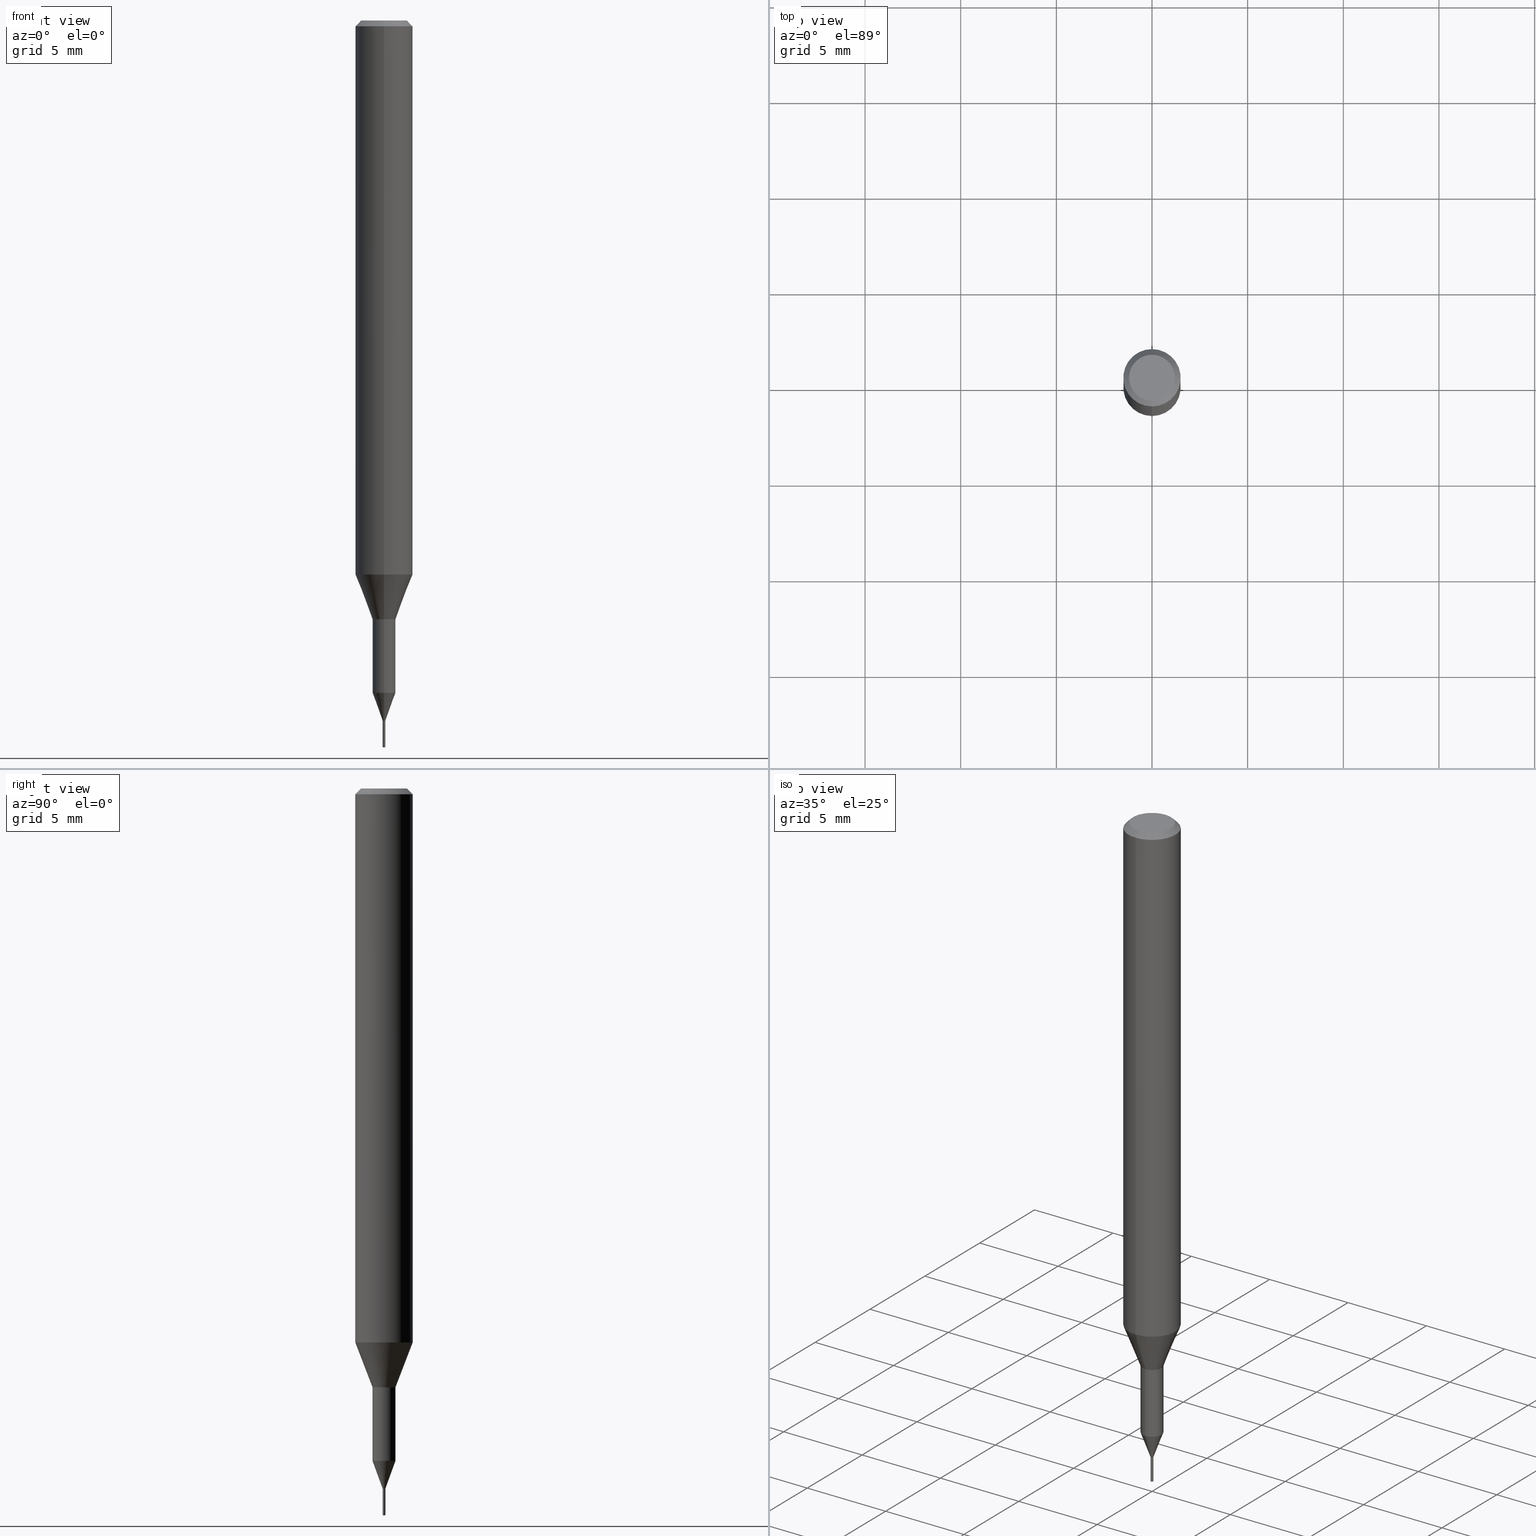
[diagram: canonical four-view strip — front | top / right | iso, engineering-drawing reading convention]
A machine part, canonical four-view strip (front | top / right | iso — engineering-drawing reading convention). The complete STEP part file that produces these views, byte-faithful:
ISO-10303-21;
HEADER;
FILE_DESCRIPTION(('no description'),'unknown implementation level');
FILE_NAME('C-UMD2014-014-Huellk.stp','  ',('CIMSOURCE GmbH'),('CADClick - KiM GmbH - www.kimweb.de'),'unknown preprocess','ACIS','unknown authorization');
FILE_SCHEMA(('automotive_design'));
ENDSEC;
DATA;
#1=MECHANICAL_DESIGN_GEOMETRIC_PRESENTATION_REPRESENTATION(' ',(#14,#15,#16,#17,#18,#19,#20,#21,#22,#23,#24,#25,#26,#27,#28,#29,#30,#31,#32,#33,#34,#35,#36,#37,#38,#39,#40,#41,#42,#43,#44,#45,#46,#47,#48,#49,#50,#51,#52,#53,#54,#55,#56,#57,#58,#59,#60,#61,#62,#63,#64,#65,#66,#67,#68,#69,#70,#71,#72,#73,#74,#75,#76,#77,#78,#79,#80,#81,#82,#83,#84,#85,#86,#87,#88,#89,#90,#91,#92),#10);
#2=PRODUCT_DEFINITION_CONTEXT('',#93,'design');
#3=APPLICATION_PROTOCOL_DEFINITION('INTERNATIONAL STANDARD','automotive_design',1994,#93);
#4=PRODUCT_CATEGORY_RELATIONSHIP('NONE','NONE',#94,#95);
#5=SHAPE_DEFINITION_REPRESENTATION(#96,#97);
#6=PRODUCT_DEFINITION_CONTEXT('',#98,'design');
#7=APPLICATION_PROTOCOL_DEFINITION('INTERNATIONAL STANDARD','automotive_design',1994,#98);
#8=PRODUCT_CATEGORY_RELATIONSHIP('NONE','NONE',#99,#100);
#9=SHAPE_DEFINITION_REPRESENTATION(#101,#102);
#10= (GEOMETRIC_REPRESENTATION_CONTEXT(3)GLOBAL_UNCERTAINTY_ASSIGNED_CONTEXT((#105))GLOBAL_UNIT_ASSIGNED_CONTEXT((#107,#108,#109))REPRESENTATION_CONTEXT('NONE','WORKSPACE'));
#14=STYLED_ITEM('',(#111),#112);
#15=STYLED_ITEM('',(#113),#114);
#16=STYLED_ITEM('',(#115),#116);
#17=STYLED_ITEM('',(#117),#118);
#18=STYLED_ITEM('',(#119),#120);
#19=STYLED_ITEM('',(#121),#122);
#20=STYLED_ITEM('',(#123),#124);
#21=STYLED_ITEM('',(#125),#126);
#22=STYLED_ITEM('',(#127),#128);
#23=STYLED_ITEM('',(#129),#130);
#24=STYLED_ITEM('',(#131),#132);
#25=STYLED_ITEM('',(#133),#134);
#26=STYLED_ITEM('',(#135),#136);
#27=STYLED_ITEM('',(#137),#138);
#28=STYLED_ITEM('',(#139),#140);
#29=STYLED_ITEM('',(#141),#142);
#30=STYLED_ITEM('',(#143),#144);
#31=STYLED_ITEM('',(#145),#146);
#32=STYLED_ITEM('',(#147),#148);
#33=STYLED_ITEM('',(#149),#150);
#34=STYLED_ITEM('',(#151),#152);
#35=STYLED_ITEM('',(#153),#154);
#36=STYLED_ITEM('',(#155),#156);
#37=STYLED_ITEM('',(#157),#158);
#38=STYLED_ITEM('',(#159),#160);
#39=STYLED_ITEM('',(#161),#162);
#40=STYLED_ITEM('',(#163),#164);
#41=STYLED_ITEM('',(#165),#166);
#42=STYLED_ITEM('',(#167),#168);
#43=STYLED_ITEM('',(#169),#170);
#44=STYLED_ITEM('',(#171),#172);
#45=STYLED_ITEM('',(#173),#174);
#46=STYLED_ITEM('',(#175),#176);
#47=STYLED_ITEM('',(#177),#178);
#48=STYLED_ITEM('',(#179),#180);
#49=STYLED_ITEM('',(#181),#182);
#50=STYLED_ITEM('',(#183),#184);
#51=STYLED_ITEM('',(#185),#186);
#52=STYLED_ITEM('',(#187),#188);
#53=STYLED_ITEM('',(#189),#190);
#54=STYLED_ITEM('',(#191),#192);
#55=STYLED_ITEM('',(#193),#194);
#56=STYLED_ITEM('',(#195),#196);
#57=STYLED_ITEM('',(#197),#198);
#58=STYLED_ITEM('',(#199),#200);
#59=STYLED_ITEM('',(#201),#202);
#60=STYLED_ITEM('',(#203),#204);
#61=STYLED_ITEM('',(#205),#206);
#62=STYLED_ITEM('',(#207),#208);
#63=STYLED_ITEM('',(#209),#210);
#64=STYLED_ITEM('',(#211),#212);
#65=STYLED_ITEM('',(#213),#214);
#66=STYLED_ITEM('',(#215),#216);
#67=STYLED_ITEM('',(#217),#218);
#68=STYLED_ITEM('',(#219),#220);
#69=STYLED_ITEM('',(#221),#222);
#70=STYLED_ITEM('',(#223),#224);
#71=STYLED_ITEM('',(#225),#226);
#72=STYLED_ITEM('',(#227),#228);
#73=STYLED_ITEM('',(#229),#230);
#74=STYLED_ITEM('',(#231),#232);
#75=STYLED_ITEM('',(#233),#234);
#76=STYLED_ITEM('',(#235),#236);
#77=STYLED_ITEM('',(#237),#238);
#78=STYLED_ITEM('',(#239),#240);
#79=STYLED_ITEM('',(#241),#242);
#80=STYLED_ITEM('',(#243),#244);
#81=STYLED_ITEM('',(#245),#246);
#82=STYLED_ITEM('',(#247),#248);
#83=STYLED_ITEM('',(#249),#250);
#84=STYLED_ITEM('',(#251),#252);
#85=STYLED_ITEM('',(#253),#254);
#86=STYLED_ITEM('',(#255),#256);
#87=STYLED_ITEM('',(#257),#258);
#88=STYLED_ITEM('',(#259),#260);
#89=STYLED_ITEM('',(#261),#262);
#90=STYLED_ITEM('',(#263),#264);
#91=STYLED_ITEM('',(#265),#266);
#92=STYLED_ITEM('',(#267),#268);
#93=APPLICATION_CONTEXT(' ');
#94=PRODUCT_CATEGORY('part','NONE');
#95=PRODUCT_RELATED_PRODUCT_CATEGORY('detail',' ',(#269));
#96=PRODUCT_DEFINITION_SHAPE('NONE','NONE',#270);
#97=ADVANCED_BREP_SHAPE_REPRESENTATION('1',(#180,#271),#10);
#98=APPLICATION_CONTEXT(' ');
#99=PRODUCT_CATEGORY('part','NONE');
#100=PRODUCT_RELATED_PRODUCT_CATEGORY('detail',' ',(#272));
#101=PRODUCT_DEFINITION_SHAPE('NONE','NONE',#273);
#102=ADVANCED_BREP_SHAPE_REPRESENTATION('2',(#156,#274),#10);
#105=UNCERTAINTY_MEASURE_WITH_UNIT(LENGTH_MEASURE(1.0E-006),#107,'','');
#107= (CONVERSION_BASED_UNIT('MILLIMETRE',#277)LENGTH_UNIT()NAMED_UNIT(#280));
#108= (NAMED_UNIT(#282)PLANE_ANGLE_UNIT()SI_UNIT($,.RADIAN.));
#109= (NAMED_UNIT(#282)SOLID_ANGLE_UNIT()SI_UNIT($,.STERADIAN.));
#111=PRESENTATION_STYLE_ASSIGNMENT((#288));
#112=ADVANCED_FACE('',(#289),#290,.T.);
#113=PRESENTATION_STYLE_ASSIGNMENT((#291));
#114=VERTEX_POINT('',#292);
#115=PRESENTATION_STYLE_ASSIGNMENT((#293));
#116=ADVANCED_FACE('',(#294),#295,.T.);
#117=PRESENTATION_STYLE_ASSIGNMENT((#296));
#118=EDGE_CURVE('',#246,#250,#297,.T.);
#119=PRESENTATION_STYLE_ASSIGNMENT((#298));
#120=VERTEX_POINT('',#299);
#121=PRESENTATION_STYLE_ASSIGNMENT((#300));
#122=EDGE_CURVE('',#120,#140,#301,.T.);
#123=PRESENTATION_STYLE_ASSIGNMENT((#302));
#124=ADVANCED_FACE('',(#303),#304,.T.);
#125=PRESENTATION_STYLE_ASSIGNMENT((#305));
#126=ADVANCED_FACE('',(#306),#307,.T.);
#127=PRESENTATION_STYLE_ASSIGNMENT((#308));
#128=VERTEX_POINT('',#309);
#129=PRESENTATION_STYLE_ASSIGNMENT((#310));
#130=ADVANCED_FACE('',(#311),#312,.T.);
#131=PRESENTATION_STYLE_ASSIGNMENT((#313));
#132=EDGE_CURVE('',#216,#212,#314,.T.);
#133=PRESENTATION_STYLE_ASSIGNMENT((#315));
#134=VERTEX_POINT('',#316);
#135=PRESENTATION_STYLE_ASSIGNMENT((#317));
#136=EDGE_CURVE('',#164,#162,#318,.T.);
#137=PRESENTATION_STYLE_ASSIGNMENT((#319));
#138=ADVANCED_FACE('',(#320),#321,.T.);
#139=PRESENTATION_STYLE_ASSIGNMENT((#322));
#140=VERTEX_POINT('',#323);
#141=PRESENTATION_STYLE_ASSIGNMENT((#324));
#142=VERTEX_POINT('',#325);
#143=PRESENTATION_STYLE_ASSIGNMENT((#326));
#144=VERTEX_POINT('',#327);
#145=PRESENTATION_STYLE_ASSIGNMENT((#328));
#146=EDGE_CURVE('',#144,#134,#329,.T.);
#147=PRESENTATION_STYLE_ASSIGNMENT((#330));
#148=VERTEX_POINT('',#331);
#149=PRESENTATION_STYLE_ASSIGNMENT((#332));
#150=ADVANCED_FACE('',(#333),#334,.T.);
#151=PRESENTATION_STYLE_ASSIGNMENT((#335));
#152=EDGE_CURVE('',#256,#148,#336,.T.);
#153=PRESENTATION_STYLE_ASSIGNMENT((#337));
#154=VERTEX_POINT('',#338);
#155=PRESENTATION_STYLE_ASSIGNMENT((#339));
#156=MANIFOLD_SOLID_BREP('2',#340);
#157=PRESENTATION_STYLE_ASSIGNMENT((#341));
#158=ADVANCED_FACE('',(#342),#343,.T.);
#159=PRESENTATION_STYLE_ASSIGNMENT((#344));
#160=EDGE_CURVE('',#140,#128,#345,.T.);
#161=PRESENTATION_STYLE_ASSIGNMENT((#346));
#162=VERTEX_POINT('',#347);
#163=PRESENTATION_STYLE_ASSIGNMENT((#348));
#164=VERTEX_POINT('',#349);
#165=PRESENTATION_STYLE_ASSIGNMENT((#350));
#166=ADVANCED_FACE('',(#351),#352,.T.);
#167=PRESENTATION_STYLE_ASSIGNMENT((#353));
#168=VERTEX_POINT('',#354);
#169=PRESENTATION_STYLE_ASSIGNMENT((#355));
#170=EDGE_CURVE('',#148,#216,#356,.T.);
#171=PRESENTATION_STYLE_ASSIGNMENT((#357));
#172=EDGE_CURVE('',#114,#154,#358,.T.);
#173=PRESENTATION_STYLE_ASSIGNMENT((#359));
#174=EDGE_CURVE('',#154,#204,#360,.T.);
#175=PRESENTATION_STYLE_ASSIGNMENT((#361));
#176=ADVANCED_FACE('',(#362),#363,.T.);
#177=PRESENTATION_STYLE_ASSIGNMENT((#364));
#178=EDGE_CURVE('',#212,#246,#365,.T.);
#179=PRESENTATION_STYLE_ASSIGNMENT((#366));
#180=MANIFOLD_SOLID_BREP('1',#367);
#181=PRESENTATION_STYLE_ASSIGNMENT((#368));
#182=EDGE_CURVE('',#128,#142,#369,.T.);
#183=PRESENTATION_STYLE_ASSIGNMENT((#370));
#184=EDGE_CURVE('',#168,#204,#371,.T.);
#185=PRESENTATION_STYLE_ASSIGNMENT((#372));
#186=EDGE_CURVE('',#134,#162,#373,.T.);
#187=PRESENTATION_STYLE_ASSIGNMENT((#374));
#188=EDGE_CURVE('',#142,#128,#375,.T.);
#189=PRESENTATION_STYLE_ASSIGNMENT((#376));
#190=EDGE_CURVE('',#142,#144,#377,.T.);
#191=PRESENTATION_STYLE_ASSIGNMENT((#378));
#192=ADVANCED_FACE('',(#379),#380,.T.);
#193=PRESENTATION_STYLE_ASSIGNMENT((#381));
#194=EDGE_CURVE('',#232,#256,#382,.T.);
#195=PRESENTATION_STYLE_ASSIGNMENT((#383));
#196=EDGE_CURVE('',#204,#266,#384,.T.);
#197=PRESENTATION_STYLE_ASSIGNMENT((#385));
#198=EDGE_CURVE('',#120,#134,#386,.T.);
#199=PRESENTATION_STYLE_ASSIGNMENT((#387));
#200=ADVANCED_FACE('',(#388),#389,.T.);
#201=PRESENTATION_STYLE_ASSIGNMENT((#390));
#202=EDGE_CURVE('',#154,#114,#391,.T.);
#203=PRESENTATION_STYLE_ASSIGNMENT((#392));
#204=VERTEX_POINT('',#393);
#205=PRESENTATION_STYLE_ASSIGNMENT((#394));
#206=EDGE_CURVE('',#246,#216,#395,.T.);
#207=PRESENTATION_STYLE_ASSIGNMENT((#396));
#208=EDGE_CURVE('',#144,#140,#397,.T.);
#209=PRESENTATION_STYLE_ASSIGNMENT((#398));
#210=EDGE_CURVE('',#250,#148,#399,.T.);
#211=PRESENTATION_STYLE_ASSIGNMENT((#400));
#212=VERTEX_POINT('',#401);
#213=PRESENTATION_STYLE_ASSIGNMENT((#402));
#214=EDGE_CURVE('',#256,#232,#403,.T.);
#215=PRESENTATION_STYLE_ASSIGNMENT((#404));
#216=VERTEX_POINT('',#405);
#217=PRESENTATION_STYLE_ASSIGNMENT((#406));
#218=EDGE_CURVE('',#216,#246,#407,.T.);
#219=PRESENTATION_STYLE_ASSIGNMENT((#408));
#220=VERTEX_POINT('',#409);
#221=PRESENTATION_STYLE_ASSIGNMENT((#410));
#222=EDGE_CURVE('',#204,#168,#411,.T.);
#223=PRESENTATION_STYLE_ASSIGNMENT((#412));
#224=ADVANCED_FACE('',(#413),#414,.T.);
#225=PRESENTATION_STYLE_ASSIGNMENT((#415));
#226=ADVANCED_FACE('',(#416),#417,.T.);
#227=PRESENTATION_STYLE_ASSIGNMENT((#418));
#228=ADVANCED_FACE('',(#419),#420,.T.);
#229=PRESENTATION_STYLE_ASSIGNMENT((#421));
#230=ADVANCED_FACE('',(#422),#423,.T.);
#231=PRESENTATION_STYLE_ASSIGNMENT((#424));
#232=VERTEX_POINT('',#425);
#233=PRESENTATION_STYLE_ASSIGNMENT((#426));
#234=EDGE_CURVE('',#162,#164,#427,.T.);
#235=PRESENTATION_STYLE_ASSIGNMENT((#428));
#236=EDGE_CURVE('',#220,#168,#429,.T.);
#237=PRESENTATION_STYLE_ASSIGNMENT((#430));
#238=ADVANCED_FACE('',(#431),#432,.T.);
#239=PRESENTATION_STYLE_ASSIGNMENT((#433));
#240=EDGE_CURVE('',#140,#144,#434,.T.);
#241=PRESENTATION_STYLE_ASSIGNMENT((#435));
#242=ADVANCED_FACE('',(#436,#437),#438,.T.);
#243=PRESENTATION_STYLE_ASSIGNMENT((#439));
#244=EDGE_CURVE('',#134,#120,#440,.T.);
#245=PRESENTATION_STYLE_ASSIGNMENT((#441));
#246=VERTEX_POINT('',#442);
#247=PRESENTATION_STYLE_ASSIGNMENT((#443));
#248=ADVANCED_FACE('',(#444),#445,.T.);
#249=PRESENTATION_STYLE_ASSIGNMENT((#446));
#250=VERTEX_POINT('',#447);
#251=PRESENTATION_STYLE_ASSIGNMENT((#448));
#252=EDGE_CURVE('',#148,#250,#449,.T.);
#253=PRESENTATION_STYLE_ASSIGNMENT((#450));
#254=EDGE_CURVE('',#250,#232,#451,.T.);
#255=PRESENTATION_STYLE_ASSIGNMENT((#452));
#256=VERTEX_POINT('',#453);
#257=PRESENTATION_STYLE_ASSIGNMENT((#454));
#258=EDGE_CURVE('',#168,#114,#455,.T.);
#259=PRESENTATION_STYLE_ASSIGNMENT((#456));
#260=EDGE_CURVE('',#220,#266,#457,.T.);
#261=PRESENTATION_STYLE_ASSIGNMENT((#458));
#262=EDGE_CURVE('',#164,#120,#459,.T.);
#263=PRESENTATION_STYLE_ASSIGNMENT((#460));
#264=ADVANCED_FACE('',(#461),#462,.T.);
#265=PRESENTATION_STYLE_ASSIGNMENT((#463));
#266=VERTEX_POINT('',#464);
#267=PRESENTATION_STYLE_ASSIGNMENT((#465));
#268=EDGE_CURVE('',#266,#220,#466,.T.);
#269=PRODUCT('1','1','PART-1-DESC',(#467));
#270=PRODUCT_DEFINITION('NONE','NONE',#468,#2);
#271=AXIS2_PLACEMENT_3D('',#469,#470,#471);
#272=PRODUCT('2','2','PART-2-DESC',(#472));
#273=PRODUCT_DEFINITION('NONE','NONE',#473,#6);
#274=AXIS2_PLACEMENT_3D('',#474,#475,#476);
#277=LENGTH_MEASURE_WITH_UNIT(LENGTH_MEASURE(1.0),#477);
#280=DIMENSIONAL_EXPONENTS(1.0,0.0,0.0,0.0,0.0,0.0,0.0);
#282=DIMENSIONAL_EXPONENTS(0.0,0.0,0.0,0.0,0.0,0.0,0.0);
#288=SURFACE_STYLE_USAGE(.BOTH.,#478);
#289=FACE_OUTER_BOUND('',#479,.T.);
#290=CONICAL_SURFACE('',#480,0.035,1.30899698524889);
#291=POINT_STYLE(' ',#481,POSITIVE_LENGTH_MEASURE(1.0E-006),#482);
#292=CARTESIAN_POINT('',(0.0,0.0700363976648351,-36.5999));
#293=SURFACE_STYLE_USAGE(.BOTH.,#483);
#294=FACE_OUTER_BOUND('',#484,.T.);
#295=CYLINDRICAL_SURFACE('',#485,1.5);
#296=CURVE_STYLE('',#486,POSITIVE_LENGTH_MEASURE(1.0E-006),#487);
#297=LINE('',#488,#489);
#298=POINT_STYLE(' ',#490,POSITIVE_LENGTH_MEASURE(1.0E-006),#491);
#299=CARTESIAN_POINT('',(0.0,1.5,-0.300000000000001));
#300=CURVE_STYLE('',#492,POSITIVE_LENGTH_MEASURE(1.0E-006),#493);
#301=LINE('',#494,#495);
#302=SURFACE_STYLE_USAGE(.BOTH.,#496);
#303=FACE_OUTER_BOUND('',#497,.T.);
#304=CONICAL_SURFACE('',#498,0.035,1.30899698524889);
#305=SURFACE_STYLE_USAGE(.BOTH.,#499);
#306=FACE_OUTER_BOUND('',#500,.T.);
#307=CYLINDRICAL_SURFACE('',#501,0.07);
#308=POINT_STYLE(' ',#502,POSITIVE_LENGTH_MEASURE(1.0E-006),#503);
#309=CARTESIAN_POINT('',(0.0,0.6,-31.3));
#310=SURFACE_STYLE_USAGE(.BOTH.,#504);
#311=FACE_OUTER_BOUND('',#505,.T.);
#312=CONICAL_SURFACE('',#506,1.35,0.785398163397447);
#313=CURVE_STYLE('',#507,POSITIVE_LENGTH_MEASURE(1.0E-006),#508);
#314=LINE('',#509,#510);
#315=POINT_STYLE(' ',#511,POSITIVE_LENGTH_MEASURE(1.0E-006),#512);
#316=CARTESIAN_POINT('',(1.83690953073357E-016,-1.5,-0.300000000000001));
#317=CURVE_STYLE('',#513,POSITIVE_LENGTH_MEASURE(1.0E-006),#514);
#318=CIRCLE('',#515,1.2);
#319=SURFACE_STYLE_USAGE(.BOTH.,#516);
#320=FACE_OUTER_BOUND('',#517,.T.);
#321=CONICAL_SURFACE('',#518,0.334993198832418,0.34907151416717);
#322=POINT_STYLE(' ',#519,POSITIVE_LENGTH_MEASURE(1.0E-006),#520);
#323=CARTESIAN_POINT('',(0.0,1.5,-28.955));
#324=POINT_STYLE(' ',#521,POSITIVE_LENGTH_MEASURE(1.0E-006),#522);
#325=CARTESIAN_POINT('',(7.34763812293426E-017,-0.6,-31.3));
#326=POINT_STYLE(' ',#523,POSITIVE_LENGTH_MEASURE(1.0E-006),#524);
#327=CARTESIAN_POINT('',(1.83690953073357E-016,-1.5,-28.955));
#328=CURVE_STYLE('',#525,POSITIVE_LENGTH_MEASURE(1.0E-006),#526);
#329=LINE('',#527,#528);
#330=POINT_STYLE(' ',#529,POSITIVE_LENGTH_MEASURE(1.0E-006),#530);
#331=CARTESIAN_POINT('',(-0.07,0.0,-36.6));
#332=SURFACE_STYLE_USAGE(.BOTH.,#531);
#333=FACE_OUTER_BOUND('',#532,.T.);
#334=CONICAL_SURFACE('',#533,1.05,0.366459241971866);
#335=CURVE_STYLE('',#534,POSITIVE_LENGTH_MEASURE(1.0E-006),#535);
#336=LINE('',#536,#537);
#337=POINT_STYLE(' ',#538,POSITIVE_LENGTH_MEASURE(1.0E-006),#539);
#338=CARTESIAN_POINT('',(8.57670175791878E-018,-0.0700363976648351,-36.5999));
#339=SURFACE_STYLE_USAGE(.BOTH.,#540);
#340=CLOSED_SHELL('',(#124,#230,#192,#224,#176,#126,#112));
#341=SURFACE_STYLE_USAGE(.BOTH.,#541);
#342=FACE_OUTER_BOUND('',#542,.T.);
#343=CONICAL_SURFACE('',#543,0.334993198832418,0.34907151416717);
#344=CURVE_STYLE('',#544,POSITIVE_LENGTH_MEASURE(1.0E-006),#545);
#345=LINE('',#546,#547);
#346=POINT_STYLE(' ',#548,POSITIVE_LENGTH_MEASURE(1.0E-006),#549);
#347=CARTESIAN_POINT('',(1.46952762458685E-016,-1.2,0.0));
#348=POINT_STYLE(' ',#550,POSITIVE_LENGTH_MEASURE(1.0E-006),#551);
#349=CARTESIAN_POINT('',(0.0,1.2,0.0));
#350=SURFACE_STYLE_USAGE(.BOTH.,#552);
#351=FACE_OUTER_BOUND('',#553,.T.);
#352=CONICAL_SURFACE('',#554,1.05,0.366459241971866);
#353=POINT_STYLE(' ',#555,POSITIVE_LENGTH_MEASURE(1.0E-006),#556);
#354=CARTESIAN_POINT('',(0.0,0.59995,-35.144));
#355=CURVE_STYLE('',#557,POSITIVE_LENGTH_MEASURE(1.0E-006),#558);
#356=LINE('',#559,#560);
#357=CURVE_STYLE('',#561,POSITIVE_LENGTH_MEASURE(1.0E-006),#562);
#358=CIRCLE('',#563,0.0700363976648351);
#359=CURVE_STYLE('',#564,POSITIVE_LENGTH_MEASURE(1.0E-006),#565);
#360=LINE('',#566,#567);
#361=SURFACE_STYLE_USAGE(.BOTH.,#568);
#362=FACE_OUTER_BOUND('',#569,.T.);
#363=CONICAL_SURFACE('',#570,0.0705182005494505,1.47460635490803);
#364=CURVE_STYLE('',#571,POSITIVE_LENGTH_MEASURE(1.0E-006),#572);
#365=LINE('',#573,#574);
#366=SURFACE_STYLE_USAGE(.BOTH.,#575);
#367=CLOSED_SHELL('',(#138,#248,#166,#116,#130,#226,#264,#200,#150,#242,#238,#158,#228));
#368=CURVE_STYLE('',#576,POSITIVE_LENGTH_MEASURE(1.0E-006),#577);
#369=CIRCLE('',#578,0.6);
#370=CURVE_STYLE('',#579,POSITIVE_LENGTH_MEASURE(1.0E-006),#580);
#371=CIRCLE('',#581,0.59995);
#372=CURVE_STYLE('',#582,POSITIVE_LENGTH_MEASURE(1.0E-006),#583);
#373=LINE('',#584,#585);
#374=CURVE_STYLE('',#586,POSITIVE_LENGTH_MEASURE(1.0E-006),#587);
#375=CIRCLE('',#588,0.6);
#376=CURVE_STYLE('',#589,POSITIVE_LENGTH_MEASURE(1.0E-006),#590);
#377=LINE('',#591,#592);
#378=SURFACE_STYLE_USAGE(.BOTH.,#593);
#379=FACE_OUTER_BOUND('',#594,.T.);
#380=CONICAL_SURFACE('',#595,0.0705182005494505,1.47460635490803);
#381=CURVE_STYLE('',#596,POSITIVE_LENGTH_MEASURE(1.0E-006),#597);
#382=CIRCLE('',#598,0.071036401098901);
#383=CURVE_STYLE('',#599,POSITIVE_LENGTH_MEASURE(1.0E-006),#600);
#384=LINE('',#601,#602);
#385=CURVE_STYLE('',#603,POSITIVE_LENGTH_MEASURE(1.0E-006),#604);
#386=CIRCLE('',#605,1.5);
#387=SURFACE_STYLE_USAGE(.BOTH.,#606);
#388=FACE_OUTER_BOUND('',#607,.T.);
#389=CYLINDRICAL_SURFACE('',#608,1.5);
#390=CURVE_STYLE('',#609,POSITIVE_LENGTH_MEASURE(1.0E-006),#610);
#391=CIRCLE('',#611,0.0700363976648351);
#392=POINT_STYLE(' ',#612,POSITIVE_LENGTH_MEASURE(1.0E-006),#613);
#393=CARTESIAN_POINT('',(7.34702581975735E-017,-0.59995,-35.144));
#394=CURVE_STYLE('',#614,POSITIVE_LENGTH_MEASURE(1.0E-006),#615);
#395=CIRCLE('',#616,0.07);
#396=CURVE_STYLE('',#617,POSITIVE_LENGTH_MEASURE(1.0E-006),#618);
#397=CIRCLE('',#619,1.5);
#398=CURVE_STYLE('',#620,POSITIVE_LENGTH_MEASURE(1.0E-006),#621);
#399=CIRCLE('',#622,0.07);
#400=POINT_STYLE(' ',#623,POSITIVE_LENGTH_MEASURE(1.0E-006),#624);
#401=CARTESIAN_POINT('',(0.0,0.0,-38.0));
#402=CURVE_STYLE('',#625,POSITIVE_LENGTH_MEASURE(1.0E-006),#626);
#403=CIRCLE('',#627,0.071036401098901);
#404=POINT_STYLE(' ',#628,POSITIVE_LENGTH_MEASURE(1.0E-006),#629);
#405=CARTESIAN_POINT('',(-0.07,0.0,-37.98124356));
#406=CURVE_STYLE('',#630,POSITIVE_LENGTH_MEASURE(1.0E-006),#631);
#407=CIRCLE('',#632,0.07);
#408=POINT_STYLE(' ',#633,POSITIVE_LENGTH_MEASURE(1.0E-006),#634);
#409=CARTESIAN_POINT('',(0.0,0.59995,-31.3));
#410=CURVE_STYLE('',#635,POSITIVE_LENGTH_MEASURE(1.0E-006),#636);
#411=CIRCLE('',#637,0.59995);
#412=SURFACE_STYLE_USAGE(.BOTH.,#638);
#413=FACE_OUTER_BOUND('',#639,.T.);
#414=PLANE('',#640);
#415=SURFACE_STYLE_USAGE(.BOTH.,#641);
#416=FACE_OUTER_BOUND('',#642,.T.);
#417=PLANE('',#643);
#418=SURFACE_STYLE_USAGE(.BOTH.,#644);
#419=FACE_OUTER_BOUND('',#645,.T.);
#420=PLANE('',#646);
#421=SURFACE_STYLE_USAGE(.BOTH.,#647);
#422=FACE_OUTER_BOUND('',#648,.T.);
#423=CYLINDRICAL_SURFACE('',#649,0.07);
#424=POINT_STYLE(' ',#650,POSITIVE_LENGTH_MEASURE(1.0E-006),#651);
#425=CARTESIAN_POINT('',(0.071036401098901,8.69916281383891E-018,-36.5999));
#426=CURVE_STYLE('',#652,POSITIVE_LENGTH_MEASURE(1.0E-006),#653);
#427=CIRCLE('',#654,1.2);
#428=CURVE_STYLE('',#655,POSITIVE_LENGTH_MEASURE(1.0E-006),#656);
#429=LINE('',#657,#658);
#430=SURFACE_STYLE_USAGE(.BOTH.,#659);
#431=FACE_OUTER_BOUND('',#660,.T.);
#432=CYLINDRICAL_SURFACE('',#661,0.59995);
#433=CURVE_STYLE('',#662,POSITIVE_LENGTH_MEASURE(1.0E-006),#663);
#434=CIRCLE('',#664,1.5);
#435=SURFACE_STYLE_USAGE(.BOTH.,#665);
#436=FACE_BOUND('',#666,.T.);
#437=FACE_OUTER_BOUND('',#667,.T.);
#438=PLANE('',#668);
#439=CURVE_STYLE('',#669,POSITIVE_LENGTH_MEASURE(1.0E-006),#670);
#440=CIRCLE('',#671,1.5);
#441=POINT_STYLE(' ',#672,POSITIVE_LENGTH_MEASURE(1.0E-006),#673);
#442=CARTESIAN_POINT('',(0.07,8.57224447675664E-018,-37.98124356));
#443=SURFACE_STYLE_USAGE(.BOTH.,#674);
#444=FACE_OUTER_BOUND('',#675,.T.);
#445=CYLINDRICAL_SURFACE('',#676,0.59995);
#446=POINT_STYLE(' ',#677,POSITIVE_LENGTH_MEASURE(1.0E-006),#678);
#447=CARTESIAN_POINT('',(0.07,8.57224447675664E-018,-36.6));
#448=CURVE_STYLE('',#679,POSITIVE_LENGTH_MEASURE(1.0E-006),#680);
#449=CIRCLE('',#681,0.07);
#450=CURVE_STYLE('',#682,POSITIVE_LENGTH_MEASURE(1.0E-006),#683);
#451=LINE('',#684,#685);
#452=POINT_STYLE(' ',#686,POSITIVE_LENGTH_MEASURE(1.0E-006),#687);
#453=CARTESIAN_POINT('',(-0.071036401098901,0.0,-36.5999));
#454=CURVE_STYLE('',#688,POSITIVE_LENGTH_MEASURE(1.0E-006),#689);
#455=LINE('',#690,#691);
#456=CURVE_STYLE('',#692,POSITIVE_LENGTH_MEASURE(1.0E-006),#693);
#457=CIRCLE('',#694,0.59995);
#458=CURVE_STYLE('',#695,POSITIVE_LENGTH_MEASURE(1.0E-006),#696);
#459=LINE('',#697,#698);
#460=SURFACE_STYLE_USAGE(.BOTH.,#699);
#461=FACE_OUTER_BOUND('',#700,.T.);
#462=CONICAL_SURFACE('',#701,1.35,0.785398163397447);
#463=POINT_STYLE(' ',#702,POSITIVE_LENGTH_MEASURE(1.0E-006),#703);
#464=CARTESIAN_POINT('',(7.34702581975735E-017,-0.59995,-31.3));
#465=CURVE_STYLE('',#704,POSITIVE_LENGTH_MEASURE(1.0E-006),#705);
#466=CIRCLE('',#706,0.59995);
#467=PRODUCT_CONTEXT('',#93,'mechanical');
#468=PRODUCT_DEFINITION_FORMATION_WITH_SPECIFIED_SOURCE(' ','NONE',#269,.NOT_KNOWN.);
#469=CARTESIAN_POINT('',(0.0,0.0,0.0));
#470=DIRECTION('',(0.0,0.0,1.0));
#471=DIRECTION('',(1.0,0.0,0.0));
#472=PRODUCT_CONTEXT('',#98,'mechanical');
#473=PRODUCT_DEFINITION_FORMATION_WITH_SPECIFIED_SOURCE(' ','NONE',#272,.NOT_KNOWN.);
#474=CARTESIAN_POINT('',(0.0,0.0,0.0));
#475=DIRECTION('',(0.0,0.0,1.0));
#476=DIRECTION('',(1.0,0.0,0.0));
#477= (NAMED_UNIT(#280)LENGTH_UNIT()SI_UNIT(.MILLI.,.METRE.));
#478=SURFACE_SIDE_STYLE('',(#708));
#479=EDGE_LOOP('',(#709,#710,#711));
#480=AXIS2_PLACEMENT_3D('',#712,#713,#714);
#481=PRE_DEFINED_MARKER('');
#482=COLOUR_RGB('',0.498039215803146,0.498039215803146,0.498039215803146);
#483=SURFACE_SIDE_STYLE('',(#715));
#484=EDGE_LOOP('',(#716,#717,#718,#719));
#485=AXIS2_PLACEMENT_3D('',#720,#721,#722);
#486=DRAUGHTING_PRE_DEFINED_CURVE_FONT('continuous');
#487=COLOUR_RGB('',0.800000011920929,0.800000011920929,0.800000011920929);
#488=CARTESIAN_POINT('',(0.07,8.57224447675664E-018,-37.29062178));
#489=VECTOR('',#723,1.0);
#490=PRE_DEFINED_MARKER('');
#491=COLOUR_RGB('',0.498039215803146,0.498039215803146,0.498039215803146);
#492=DRAUGHTING_PRE_DEFINED_CURVE_FONT('continuous');
#493=COLOUR_RGB('',0.498039215803146,0.498039215803146,0.498039215803146);
#494=CARTESIAN_POINT('',(-1.83690953073357E-016,1.5,-14.6275));
#495=VECTOR('',#724,1.0);
#496=SURFACE_SIDE_STYLE('',(#725));
#497=EDGE_LOOP('',(#726,#727,#728));
#498=AXIS2_PLACEMENT_3D('',#729,#730,#731);
#499=SURFACE_SIDE_STYLE('',(#732));
#500=EDGE_LOOP('',(#733,#734,#735,#736));
#501=AXIS2_PLACEMENT_3D('',#737,#738,#739);
#502=PRE_DEFINED_MARKER('');
#503=COLOUR_RGB('',0.498039215803146,0.498039215803146,0.498039215803146);
#504=SURFACE_SIDE_STYLE('',(#740));
#505=EDGE_LOOP('',(#741,#742,#743,#744));
#506=AXIS2_PLACEMENT_3D('',#745,#746,#747);
#507=DRAUGHTING_PRE_DEFINED_CURVE_FONT('continuous');
#508=COLOUR_RGB('',0.800000011920929,0.800000011920929,0.800000011920929);
#509=CARTESIAN_POINT('',(-0.035,-4.28612223837832E-018,-37.99062178));
#510=VECTOR('',#748,1.0);
#511=PRE_DEFINED_MARKER('');
#512=COLOUR_RGB('',0.498039215803146,0.498039215803146,0.498039215803146);
#513=DRAUGHTING_PRE_DEFINED_CURVE_FONT('continuous');
#514=COLOUR_RGB('',0.498039215803146,0.498039215803146,0.498039215803146);
#515=AXIS2_PLACEMENT_3D('',#749,#750,#751);
#516=SURFACE_SIDE_STYLE('',(#752));
#517=EDGE_LOOP('',(#753,#754,#755,#756));
#518=AXIS2_PLACEMENT_3D('',#757,#758,#759);
#519=PRE_DEFINED_MARKER('');
#520=COLOUR_RGB('',0.498039215803146,0.498039215803146,0.498039215803146);
#521=PRE_DEFINED_MARKER('');
#522=COLOUR_RGB('',0.498039215803146,0.498039215803146,0.498039215803146);
#523=PRE_DEFINED_MARKER('');
#524=COLOUR_RGB('',0.498039215803146,0.498039215803146,0.498039215803146);
#525=DRAUGHTING_PRE_DEFINED_CURVE_FONT('continuous');
#526=COLOUR_RGB('',0.498039215803146,0.498039215803146,0.498039215803146);
#527=CARTESIAN_POINT('',(1.83690953073357E-016,-1.5,-14.6275));
#528=VECTOR('',#760,1.0);
#529=PRE_DEFINED_MARKER('');
#530=COLOUR_RGB('',0.800000011920929,0.800000011920929,0.800000011920929);
#531=SURFACE_SIDE_STYLE('',(#761));
#532=EDGE_LOOP('',(#762,#763,#764,#765));
#533=AXIS2_PLACEMENT_3D('',#766,#767,#768);
#534=DRAUGHTING_PRE_DEFINED_CURVE_FONT('continuous');
#535=COLOUR_RGB('',0.800000011920929,0.800000011920929,0.800000011920929);
#536=CARTESIAN_POINT('',(-0.0705182005494505,-8.63570364529777E-018,-36.59995));
#537=VECTOR('',#769,1.0);
#538=PRE_DEFINED_MARKER('');
#539=COLOUR_RGB('',0.498039215803146,0.498039215803146,0.498039215803146);
#540=SURFACE_SIDE_STYLE('',(#770));
#541=SURFACE_SIDE_STYLE('',(#771));
#542=EDGE_LOOP('',(#772,#773,#774,#775));
#543=AXIS2_PLACEMENT_3D('',#776,#777,#778);
#544=DRAUGHTING_PRE_DEFINED_CURVE_FONT('continuous');
#545=COLOUR_RGB('',0.498039215803146,0.498039215803146,0.498039215803146);
#546=CARTESIAN_POINT('',(-1.2858366715135E-016,1.05,-30.1275));
#547=VECTOR('',#779,1.0);
#548=PRE_DEFINED_MARKER('');
#549=COLOUR_RGB('',0.498039215803146,0.498039215803146,0.498039215803146);
#550=PRE_DEFINED_MARKER('');
#551=COLOUR_RGB('',0.498039215803146,0.498039215803146,0.498039215803146);
#552=SURFACE_SIDE_STYLE('',(#780));
#553=EDGE_LOOP('',(#781,#782,#783,#784));
#554=AXIS2_PLACEMENT_3D('',#785,#786,#787);
#555=PRE_DEFINED_MARKER('');
#556=COLOUR_RGB('',0.498039215803146,0.498039215803146,0.498039215803146);
#557=DRAUGHTING_PRE_DEFINED_CURVE_FONT('continuous');
#558=COLOUR_RGB('',0.800000011920929,0.800000011920929,0.800000011920929);
#559=CARTESIAN_POINT('',(-0.07,-8.57224447675664E-018,-37.29062178));
#560=VECTOR('',#788,1.0);
#561=DRAUGHTING_PRE_DEFINED_CURVE_FONT('continuous');
#562=COLOUR_RGB('',0.498039215803146,0.498039215803146,0.498039215803146);
#563=AXIS2_PLACEMENT_3D('',#789,#790,#791);
#564=DRAUGHTING_PRE_DEFINED_CURVE_FONT('continuous');
#565=COLOUR_RGB('',0.498039215803146,0.498039215803146,0.498039215803146);
#566=CARTESIAN_POINT('',(4.10234799777461E-017,-0.334993198832418,-35.87195));
#567=VECTOR('',#792,1.0);
#568=SURFACE_SIDE_STYLE('',(#793));
#569=EDGE_LOOP('',(#794,#795,#796,#797));
#570=AXIS2_PLACEMENT_3D('',#798,#799,#800);
#571=DRAUGHTING_PRE_DEFINED_CURVE_FONT('continuous');
#572=COLOUR_RGB('',0.800000011920929,0.800000011920929,0.800000011920929);
#573=CARTESIAN_POINT('',(0.035,4.28612223837832E-018,-37.99062178));
#574=VECTOR('',#801,1.0);
#575=SURFACE_SIDE_STYLE('',(#802));
#576=DRAUGHTING_PRE_DEFINED_CURVE_FONT('continuous');
#577=COLOUR_RGB('',0.498039215803146,0.498039215803146,0.498039215803146);
#578=AXIS2_PLACEMENT_3D('',#803,#804,#805);
#579=DRAUGHTING_PRE_DEFINED_CURVE_FONT('continuous');
#580=COLOUR_RGB('',0.498039215803146,0.498039215803146,0.498039215803146);
#581=AXIS2_PLACEMENT_3D('',#806,#807,#808);
#582=DRAUGHTING_PRE_DEFINED_CURVE_FONT('continuous');
#583=COLOUR_RGB('',0.498039215803146,0.498039215803146,0.498039215803146);
#584=CARTESIAN_POINT('',(1.65321857766021E-016,-1.35,-0.149999999999999));
#585=VECTOR('',#809,1.0);
#586=DRAUGHTING_PRE_DEFINED_CURVE_FONT('continuous');
#587=COLOUR_RGB('',0.498039215803146,0.498039215803146,0.498039215803146);
#588=AXIS2_PLACEMENT_3D('',#810,#811,#812);
#589=DRAUGHTING_PRE_DEFINED_CURVE_FONT('continuous');
#590=COLOUR_RGB('',0.498039215803146,0.498039215803146,0.498039215803146);
#591=CARTESIAN_POINT('',(1.2858366715135E-016,-1.05,-30.1275));
#592=VECTOR('',#813,1.0);
#593=SURFACE_SIDE_STYLE('',(#814));
#594=EDGE_LOOP('',(#815,#816,#817,#818));
#595=AXIS2_PLACEMENT_3D('',#819,#820,#821);
#596=DRAUGHTING_PRE_DEFINED_CURVE_FONT('continuous');
#597=COLOUR_RGB('',0.800000011920929,0.800000011920929,0.800000011920929);
#598=AXIS2_PLACEMENT_3D('',#822,#823,#824);
#599=DRAUGHTING_PRE_DEFINED_CURVE_FONT('continuous');
#600=COLOUR_RGB('',0.498039215803146,0.498039215803146,0.498039215803146);
#601=CARTESIAN_POINT('',(7.34702581975735E-017,-0.59995,-33.222));
#602=VECTOR('',#825,1.0);
#603=DRAUGHTING_PRE_DEFINED_CURVE_FONT('continuous');
#604=COLOUR_RGB('',0.498039215803146,0.498039215803146,0.498039215803146);
#605=AXIS2_PLACEMENT_3D('',#826,#827,#828);
#606=SURFACE_SIDE_STYLE('',(#829));
#607=EDGE_LOOP('',(#830,#831,#832,#833));
#608=AXIS2_PLACEMENT_3D('',#834,#835,#836);
#609=DRAUGHTING_PRE_DEFINED_CURVE_FONT('continuous');
#610=COLOUR_RGB('',0.498039215803146,0.498039215803146,0.498039215803146);
#611=AXIS2_PLACEMENT_3D('',#837,#838,#839);
#612=PRE_DEFINED_MARKER('');
#613=COLOUR_RGB('',0.498039215803146,0.498039215803146,0.498039215803146);
#614=DRAUGHTING_PRE_DEFINED_CURVE_FONT('continuous');
#615=COLOUR_RGB('',0.800000011920929,0.800000011920929,0.800000011920929);
#616=AXIS2_PLACEMENT_3D('',#840,#841,#842);
#617=DRAUGHTING_PRE_DEFINED_CURVE_FONT('continuous');
#618=COLOUR_RGB('',0.498039215803146,0.498039215803146,0.498039215803146);
#619=AXIS2_PLACEMENT_3D('',#843,#844,#845);
#620=DRAUGHTING_PRE_DEFINED_CURVE_FONT('continuous');
#621=COLOUR_RGB('',0.800000011920929,0.800000011920929,0.800000011920929);
#622=AXIS2_PLACEMENT_3D('',#846,#847,#848);
#623=PRE_DEFINED_MARKER('');
#624=COLOUR_RGB('',0.800000011920929,0.800000011920929,0.800000011920929);
#625=DRAUGHTING_PRE_DEFINED_CURVE_FONT('continuous');
#626=COLOUR_RGB('',0.800000011920929,0.800000011920929,0.800000011920929);
#627=AXIS2_PLACEMENT_3D('',#849,#850,#851);
#628=PRE_DEFINED_MARKER('');
#629=COLOUR_RGB('',0.800000011920929,0.800000011920929,0.800000011920929);
#630=DRAUGHTING_PRE_DEFINED_CURVE_FONT('continuous');
#631=COLOUR_RGB('',0.800000011920929,0.800000011920929,0.800000011920929);
#632=AXIS2_PLACEMENT_3D('',#852,#853,#854);
#633=PRE_DEFINED_MARKER('');
#634=COLOUR_RGB('',0.498039215803146,0.498039215803146,0.498039215803146);
#635=DRAUGHTING_PRE_DEFINED_CURVE_FONT('continuous');
#636=COLOUR_RGB('',0.498039215803146,0.498039215803146,0.498039215803146);
#637=AXIS2_PLACEMENT_3D('',#855,#856,#857);
#638=SURFACE_SIDE_STYLE('',(#858));
#639=EDGE_LOOP('',(#859,#860));
#640=AXIS2_PLACEMENT_3D('',#861,#862,#863);
#641=SURFACE_SIDE_STYLE('',(#864));
#642=EDGE_LOOP('',(#865,#866));
#643=AXIS2_PLACEMENT_3D('',#867,#868,#869);
#644=SURFACE_SIDE_STYLE('',(#870));
#645=EDGE_LOOP('',(#871,#872));
#646=AXIS2_PLACEMENT_3D('',#873,#874,#875);
#647=SURFACE_SIDE_STYLE('',(#876));
#648=EDGE_LOOP('',(#877,#878,#879,#880));
#649=AXIS2_PLACEMENT_3D('',#881,#882,#883);
#650=PRE_DEFINED_MARKER('');
#651=COLOUR_RGB('',0.800000011920929,0.800000011920929,0.800000011920929);
#652=DRAUGHTING_PRE_DEFINED_CURVE_FONT('continuous');
#653=COLOUR_RGB('',0.498039215803146,0.498039215803146,0.498039215803146);
#654=AXIS2_PLACEMENT_3D('',#884,#885,#886);
#655=DRAUGHTING_PRE_DEFINED_CURVE_FONT('continuous');
#656=COLOUR_RGB('',0.498039215803146,0.498039215803146,0.498039215803146);
#657=CARTESIAN_POINT('',(-7.34702581975735E-017,0.59995,-33.222));
#658=VECTOR('',#887,1.0);
#659=SURFACE_SIDE_STYLE('',(#888));
#660=EDGE_LOOP('',(#889,#890,#891,#892));
#661=AXIS2_PLACEMENT_3D('',#893,#894,#895);
#662=DRAUGHTING_PRE_DEFINED_CURVE_FONT('continuous');
#663=COLOUR_RGB('',0.498039215803146,0.498039215803146,0.498039215803146);
#664=AXIS2_PLACEMENT_3D('',#896,#897,#898);
#665=SURFACE_SIDE_STYLE('',(#899));
#666=EDGE_LOOP('',(#900,#901));
#667=EDGE_LOOP('',(#902,#903));
#668=AXIS2_PLACEMENT_3D('',#904,#905,#906);
#669=DRAUGHTING_PRE_DEFINED_CURVE_FONT('continuous');
#670=COLOUR_RGB('',0.498039215803146,0.498039215803146,0.498039215803146);
#671=AXIS2_PLACEMENT_3D('',#907,#908,#909);
#672=PRE_DEFINED_MARKER('');
#673=COLOUR_RGB('',0.800000011920929,0.800000011920929,0.800000011920929);
#674=SURFACE_SIDE_STYLE('',(#910));
#675=EDGE_LOOP('',(#911,#912,#913,#914));
#676=AXIS2_PLACEMENT_3D('',#915,#916,#917);
#677=PRE_DEFINED_MARKER('');
#678=COLOUR_RGB('',0.800000011920929,0.800000011920929,0.800000011920929);
#679=DRAUGHTING_PRE_DEFINED_CURVE_FONT('continuous');
#680=COLOUR_RGB('',0.800000011920929,0.800000011920929,0.800000011920929);
#681=AXIS2_PLACEMENT_3D('',#918,#919,#920);
#682=DRAUGHTING_PRE_DEFINED_CURVE_FONT('continuous');
#683=COLOUR_RGB('',0.800000011920929,0.800000011920929,0.800000011920929);
#684=CARTESIAN_POINT('',(0.0705182005494505,8.63570364529777E-018,-36.59995));
#685=VECTOR('',#921,1.0);
#686=PRE_DEFINED_MARKER('');
#687=COLOUR_RGB('',0.800000011920929,0.800000011920929,0.800000011920929);
#688=DRAUGHTING_PRE_DEFINED_CURVE_FONT('continuous');
#689=COLOUR_RGB('',0.498039215803146,0.498039215803146,0.498039215803146);
#690=CARTESIAN_POINT('',(-4.10234799777461E-017,0.334993198832418,-35.87195));
#691=VECTOR('',#922,1.0);
#692=DRAUGHTING_PRE_DEFINED_CURVE_FONT('continuous');
#693=COLOUR_RGB('',0.498039215803146,0.498039215803146,0.498039215803146);
#694=AXIS2_PLACEMENT_3D('',#923,#924,#925);
#695=DRAUGHTING_PRE_DEFINED_CURVE_FONT('continuous');
#696=COLOUR_RGB('',0.498039215803146,0.498039215803146,0.498039215803146);
#697=CARTESIAN_POINT('',(-1.65321857766021E-016,1.35,-0.149999999999999));
#698=VECTOR('',#926,1.0);
#699=SURFACE_SIDE_STYLE('',(#927));
#700=EDGE_LOOP('',(#928,#929,#930,#931));
#701=AXIS2_PLACEMENT_3D('',#932,#933,#934);
#702=PRE_DEFINED_MARKER('');
#703=COLOUR_RGB('',0.498039215803146,0.498039215803146,0.498039215803146);
#704=DRAUGHTING_PRE_DEFINED_CURVE_FONT('continuous');
#705=COLOUR_RGB('',0.498039215803146,0.498039215803146,0.498039215803146);
#706=AXIS2_PLACEMENT_3D('',#935,#936,#937);
#708=SURFACE_STYLE_FILL_AREA(#938);
#709=ORIENTED_EDGE('',*,*,#178,.T.);
#710=ORIENTED_EDGE('',*,*,#206,.T.);
#711=ORIENTED_EDGE('',*,*,#132,.T.);
#712=CARTESIAN_POINT('',(0.0,0.0,-37.99062178));
#713=DIRECTION('',(-0.0,-0.0,1.0));
#714=DIRECTION('',(-1.0,0.0,0.0));
#715=SURFACE_STYLE_FILL_AREA(#939);
#716=ORIENTED_EDGE('',*,*,#122,.F.);
#717=ORIENTED_EDGE('',*,*,#198,.T.);
#718=ORIENTED_EDGE('',*,*,#146,.F.);
#719=ORIENTED_EDGE('',*,*,#240,.F.);
#720=CARTESIAN_POINT('',(0.0,0.0,-14.6275));
#721=DIRECTION('',(-0.0,-0.0,1.0));
#722=DIRECTION('',(0.0,1.0,0.0));
#723=DIRECTION('',(-0.0,-0.0,1.0));
#724=DIRECTION('',(0.0,0.0,-1.0));
#725=SURFACE_STYLE_FILL_AREA(#940);
#726=ORIENTED_EDGE('',*,*,#178,.F.);
#727=ORIENTED_EDGE('',*,*,#132,.F.);
#728=ORIENTED_EDGE('',*,*,#218,.T.);
#729=CARTESIAN_POINT('',(0.0,0.0,-37.99062178));
#730=DIRECTION('',(-0.0,-0.0,1.0));
#731=DIRECTION('',(-1.0,0.0,0.0));
#732=SURFACE_STYLE_FILL_AREA(#941);
#733=ORIENTED_EDGE('',*,*,#170,.T.);
#734=ORIENTED_EDGE('',*,*,#206,.F.);
#735=ORIENTED_EDGE('',*,*,#118,.T.);
#736=ORIENTED_EDGE('',*,*,#210,.T.);
#737=CARTESIAN_POINT('',(0.0,0.0,-37.29062178));
#738=DIRECTION('',(-0.0,-0.0,1.0));
#739=DIRECTION('',(-1.0,0.0,0.0));
#740=SURFACE_STYLE_FILL_AREA(#942);
#741=ORIENTED_EDGE('',*,*,#262,.F.);
#742=ORIENTED_EDGE('',*,*,#136,.T.);
#743=ORIENTED_EDGE('',*,*,#186,.F.);
#744=ORIENTED_EDGE('',*,*,#198,.F.);
#745=CARTESIAN_POINT('',(0.0,0.0,-0.149999999999999));
#746=DIRECTION('',(0.0,-0.0,-1.0));
#747=DIRECTION('',(0.0,1.0,0.0));
#748=DIRECTION('',(0.965925838260262,1.18287891885472E-016,-0.258819000425413));
#749=CARTESIAN_POINT('',(0.0,0.0,0.0));
#750=DIRECTION('',(0.0,0.0,-1.0));
#751=DIRECTION('',(0.0,1.0,0.0));
#752=SURFACE_STYLE_FILL_AREA(#943);
#753=ORIENTED_EDGE('',*,*,#258,.F.);
#754=ORIENTED_EDGE('',*,*,#184,.T.);
#755=ORIENTED_EDGE('',*,*,#174,.F.);
#756=ORIENTED_EDGE('',*,*,#172,.F.);
#757=CARTESIAN_POINT('',(0.0,0.0,-35.87195));
#758=DIRECTION('',(-0.0,-0.0,1.0));
#759=DIRECTION('',(0.0,1.0,0.0));
#760=DIRECTION('',(-0.0,-0.0,1.0));
#761=SURFACE_STYLE_FILL_AREA(#944);
#762=ORIENTED_EDGE('',*,*,#160,.T.);
#763=ORIENTED_EDGE('',*,*,#188,.F.);
#764=ORIENTED_EDGE('',*,*,#190,.T.);
#765=ORIENTED_EDGE('',*,*,#208,.T.);
#766=CARTESIAN_POINT('',(0.0,0.0,-30.1275));
#767=DIRECTION('',(-0.0,-0.0,1.0));
#768=DIRECTION('',(0.0,1.0,0.0));
#769=DIRECTION('',(0.995377310593993,1.21894537900403E-016,-0.0960417073706521));
#770=SURFACE_STYLE_FILL_AREA(#945);
#771=SURFACE_STYLE_FILL_AREA(#946);
#772=ORIENTED_EDGE('',*,*,#258,.T.);
#773=ORIENTED_EDGE('',*,*,#202,.F.);
#774=ORIENTED_EDGE('',*,*,#174,.T.);
#775=ORIENTED_EDGE('',*,*,#222,.T.);
#776=CARTESIAN_POINT('',(0.0,0.0,-35.87195));
#777=DIRECTION('',(-0.0,-0.0,1.0));
#778=DIRECTION('',(0.0,1.0,0.0));
#779=DIRECTION('',(4.38791184365088E-017,-0.358312026550805,-0.93360189140182));
#780=SURFACE_STYLE_FILL_AREA(#947);
#781=ORIENTED_EDGE('',*,*,#160,.F.);
#782=ORIENTED_EDGE('',*,*,#240,.T.);
#783=ORIENTED_EDGE('',*,*,#190,.F.);
#784=ORIENTED_EDGE('',*,*,#182,.F.);
#785=CARTESIAN_POINT('',(0.0,0.0,-30.1275));
#786=DIRECTION('',(-0.0,-0.0,1.0));
#787=DIRECTION('',(0.0,1.0,0.0));
#788=DIRECTION('',(0.0,0.0,-1.0));
#789=CARTESIAN_POINT('',(0.0,0.0,-36.5999));
#790=DIRECTION('',(0.0,0.0,-1.0));
#791=DIRECTION('',(0.0,1.0,0.0));
#792=DIRECTION('',(4.18846558246642E-017,-0.342025465521464,0.939690683647989));
#793=SURFACE_STYLE_FILL_AREA(#948);
#794=ORIENTED_EDGE('',*,*,#152,.T.);
#795=ORIENTED_EDGE('',*,*,#210,.F.);
#796=ORIENTED_EDGE('',*,*,#254,.T.);
#797=ORIENTED_EDGE('',*,*,#194,.T.);
#798=CARTESIAN_POINT('',(0.0,0.0,-36.59995));
#799=DIRECTION('',(-0.0,-0.0,1.0));
#800=DIRECTION('',(-1.0,0.0,0.0));
#801=DIRECTION('',(0.965925838260262,1.18287891885472E-016,0.258819000425413));
#802=SURFACE_STYLE_FILL_AREA(#949);
#803=CARTESIAN_POINT('',(0.0,0.0,-31.3));
#804=DIRECTION('',(0.0,0.0,-1.0));
#805=DIRECTION('',(0.0,1.0,0.0));
#806=CARTESIAN_POINT('',(0.0,0.0,-35.144));
#807=DIRECTION('',(0.0,0.0,-1.0));
#808=DIRECTION('',(0.0,1.0,0.0));
#809=DIRECTION('',(-8.65927457071934E-017,0.707106781186546,0.707106781186549));
#810=CARTESIAN_POINT('',(0.0,0.0,-31.3));
#811=DIRECTION('',(0.0,0.0,-1.0));
#812=DIRECTION('',(0.0,1.0,0.0));
#813=DIRECTION('',(4.38791184365088E-017,-0.358312026550805,0.93360189140182));
#814=SURFACE_STYLE_FILL_AREA(#950);
#815=ORIENTED_EDGE('',*,*,#152,.F.);
#816=ORIENTED_EDGE('',*,*,#214,.T.);
#817=ORIENTED_EDGE('',*,*,#254,.F.);
#818=ORIENTED_EDGE('',*,*,#252,.F.);
#819=CARTESIAN_POINT('',(0.0,0.0,-36.59995));
#820=DIRECTION('',(-0.0,-0.0,1.0));
#821=DIRECTION('',(-1.0,0.0,0.0));
#822=CARTESIAN_POINT('',(0.0,0.0,-36.5999));
#823=DIRECTION('',(0.0,0.0,-1.0));
#824=DIRECTION('',(-1.0,0.0,0.0));
#825=DIRECTION('',(-0.0,-0.0,1.0));
#826=CARTESIAN_POINT('',(0.0,0.0,-0.300000000000001));
#827=DIRECTION('',(0.0,0.0,-1.0));
#828=DIRECTION('',(0.0,1.0,0.0));
#829=SURFACE_STYLE_FILL_AREA(#951);
#830=ORIENTED_EDGE('',*,*,#122,.T.);
#831=ORIENTED_EDGE('',*,*,#208,.F.);
#832=ORIENTED_EDGE('',*,*,#146,.T.);
#833=ORIENTED_EDGE('',*,*,#244,.T.);
#834=CARTESIAN_POINT('',(0.0,0.0,-14.6275));
#835=DIRECTION('',(-0.0,-0.0,1.0));
#836=DIRECTION('',(0.0,1.0,0.0));
#837=CARTESIAN_POINT('',(0.0,0.0,-36.5999));
#838=DIRECTION('',(0.0,0.0,-1.0));
#839=DIRECTION('',(0.0,1.0,0.0));
#840=CARTESIAN_POINT('',(0.0,0.0,-37.98124356));
#841=DIRECTION('',(0.0,0.0,-1.0));
#842=DIRECTION('',(-1.0,0.0,0.0));
#843=CARTESIAN_POINT('',(0.0,0.0,-28.955));
#844=DIRECTION('',(0.0,0.0,-1.0));
#845=DIRECTION('',(0.0,1.0,0.0));
#846=CARTESIAN_POINT('',(0.0,0.0,-36.6));
#847=DIRECTION('',(0.0,0.0,-1.0));
#848=DIRECTION('',(-1.0,0.0,0.0));
#849=CARTESIAN_POINT('',(0.0,0.0,-36.5999));
#850=DIRECTION('',(0.0,0.0,-1.0));
#851=DIRECTION('',(-1.0,0.0,0.0));
#852=CARTESIAN_POINT('',(0.0,0.0,-37.98124356));
#853=DIRECTION('',(0.0,0.0,-1.0));
#854=DIRECTION('',(-1.0,0.0,0.0));
#855=CARTESIAN_POINT('',(0.0,0.0,-35.144));
#856=DIRECTION('',(0.0,0.0,-1.0));
#857=DIRECTION('',(0.0,1.0,0.0));
#858=SURFACE_STYLE_FILL_AREA(#952);
#859=ORIENTED_EDGE('',*,*,#214,.F.);
#860=ORIENTED_EDGE('',*,*,#194,.F.);
#861=CARTESIAN_POINT('',(-0.0355182005494505,0.0,-36.5999));
#862=DIRECTION('',(0.0,0.0,1.0));
#863=DIRECTION('',(1.0,0.0,0.0));
#864=SURFACE_STYLE_FILL_AREA(#953);
#865=ORIENTED_EDGE('',*,*,#136,.F.);
#866=ORIENTED_EDGE('',*,*,#234,.F.);
#867=CARTESIAN_POINT('',(0.0,0.6,0.0));
#868=DIRECTION('',(-0.0,0.0,1.0));
#869=DIRECTION('',(0.0,-1.0,0.0));
#870=SURFACE_STYLE_FILL_AREA(#954);
#871=ORIENTED_EDGE('',*,*,#172,.T.);
#872=ORIENTED_EDGE('',*,*,#202,.T.);
#873=CARTESIAN_POINT('',(0.0,0.0350181988324176,-36.5999));
#874=DIRECTION('',(0.0,0.0,-1.0));
#875=DIRECTION('',(0.0,1.0,0.0));
#876=SURFACE_STYLE_FILL_AREA(#955);
#877=ORIENTED_EDGE('',*,*,#170,.F.);
#878=ORIENTED_EDGE('',*,*,#252,.T.);
#879=ORIENTED_EDGE('',*,*,#118,.F.);
#880=ORIENTED_EDGE('',*,*,#218,.F.);
#881=CARTESIAN_POINT('',(0.0,0.0,-37.29062178));
#882=DIRECTION('',(-0.0,-0.0,1.0));
#883=DIRECTION('',(-1.0,0.0,0.0));
#884=CARTESIAN_POINT('',(0.0,0.0,0.0));
#885=DIRECTION('',(0.0,0.0,-1.0));
#886=DIRECTION('',(0.0,1.0,0.0));
#887=DIRECTION('',(0.0,0.0,-1.0));
#888=SURFACE_STYLE_FILL_AREA(#956);
#889=ORIENTED_EDGE('',*,*,#236,.T.);
#890=ORIENTED_EDGE('',*,*,#222,.F.);
#891=ORIENTED_EDGE('',*,*,#196,.T.);
#892=ORIENTED_EDGE('',*,*,#268,.T.);
#893=CARTESIAN_POINT('',(0.0,0.0,-33.222));
#894=DIRECTION('',(-0.0,-0.0,1.0));
#895=DIRECTION('',(0.0,1.0,0.0));
#896=CARTESIAN_POINT('',(0.0,0.0,-28.955));
#897=DIRECTION('',(0.0,0.0,-1.0));
#898=DIRECTION('',(0.0,1.0,0.0));
#899=SURFACE_STYLE_FILL_AREA(#957);
#900=ORIENTED_EDGE('',*,*,#260,.F.);
#901=ORIENTED_EDGE('',*,*,#268,.F.);
#902=ORIENTED_EDGE('',*,*,#182,.T.);
#903=ORIENTED_EDGE('',*,*,#188,.T.);
#904=CARTESIAN_POINT('',(0.0,0.599975,-31.3));
#905=DIRECTION('',(0.0,1.77635683940045E-011,-1.0));
#906=DIRECTION('',(0.0,1.0,1.77635683940045E-011));
#907=CARTESIAN_POINT('',(0.0,0.0,-0.300000000000001));
#908=DIRECTION('',(0.0,0.0,-1.0));
#909=DIRECTION('',(0.0,1.0,0.0));
#910=SURFACE_STYLE_FILL_AREA(#958);
#911=ORIENTED_EDGE('',*,*,#236,.F.);
#912=ORIENTED_EDGE('',*,*,#260,.T.);
#913=ORIENTED_EDGE('',*,*,#196,.F.);
#914=ORIENTED_EDGE('',*,*,#184,.F.);
#915=CARTESIAN_POINT('',(0.0,0.0,-33.222));
#916=DIRECTION('',(-0.0,-0.0,1.0));
#917=DIRECTION('',(0.0,1.0,0.0));
#918=CARTESIAN_POINT('',(0.0,0.0,-36.6));
#919=DIRECTION('',(0.0,0.0,-1.0));
#920=DIRECTION('',(-1.0,0.0,0.0));
#921=DIRECTION('',(0.995377310593993,1.21894537900403E-016,0.0960417073706521));
#922=DIRECTION('',(4.18846558246642E-017,-0.342025465521464,-0.939690683647989));
#923=CARTESIAN_POINT('',(0.0,0.0,-31.3));
#924=DIRECTION('',(0.0,0.0,-1.0));
#925=DIRECTION('',(0.0,1.0,0.0));
#926=DIRECTION('',(-8.65927457071934E-017,0.707106781186546,-0.707106781186549));
#927=SURFACE_STYLE_FILL_AREA(#959);
#928=ORIENTED_EDGE('',*,*,#262,.T.);
#929=ORIENTED_EDGE('',*,*,#244,.F.);
#930=ORIENTED_EDGE('',*,*,#186,.T.);
#931=ORIENTED_EDGE('',*,*,#234,.T.);
#932=CARTESIAN_POINT('',(0.0,0.0,-0.149999999999999));
#933=DIRECTION('',(0.0,-0.0,-1.0));
#934=DIRECTION('',(0.0,1.0,0.0));
#935=CARTESIAN_POINT('',(0.0,0.0,-31.3));
#936=DIRECTION('',(0.0,0.0,-1.0));
#937=DIRECTION('',(0.0,1.0,0.0));
#938=FILL_AREA_STYLE('',(#960));
#939=FILL_AREA_STYLE('',(#961));
#940=FILL_AREA_STYLE('',(#962));
#941=FILL_AREA_STYLE('',(#963));
#942=FILL_AREA_STYLE('',(#964));
#943=FILL_AREA_STYLE('',(#965));
#944=FILL_AREA_STYLE('',(#966));
#945=FILL_AREA_STYLE('',(#967));
#946=FILL_AREA_STYLE('',(#968));
#947=FILL_AREA_STYLE('',(#969));
#948=FILL_AREA_STYLE('',(#970));
#949=FILL_AREA_STYLE('',(#971));
#950=FILL_AREA_STYLE('',(#972));
#951=FILL_AREA_STYLE('',(#973));
#952=FILL_AREA_STYLE('',(#974));
#953=FILL_AREA_STYLE('',(#975));
#954=FILL_AREA_STYLE('',(#976));
#955=FILL_AREA_STYLE('',(#977));
#956=FILL_AREA_STYLE('',(#978));
#957=FILL_AREA_STYLE('',(#979));
#958=FILL_AREA_STYLE('',(#980));
#959=FILL_AREA_STYLE('',(#981));
#960=FILL_AREA_STYLE_COLOUR('',#982);
#961=FILL_AREA_STYLE_COLOUR('',#983);
#962=FILL_AREA_STYLE_COLOUR('',#984);
#963=FILL_AREA_STYLE_COLOUR('',#985);
#964=FILL_AREA_STYLE_COLOUR('',#986);
#965=FILL_AREA_STYLE_COLOUR('',#987);
#966=FILL_AREA_STYLE_COLOUR('',#988);
#967=FILL_AREA_STYLE_COLOUR('',#989);
#968=FILL_AREA_STYLE_COLOUR('',#990);
#969=FILL_AREA_STYLE_COLOUR('',#991);
#970=FILL_AREA_STYLE_COLOUR('',#992);
#971=FILL_AREA_STYLE_COLOUR('',#993);
#972=FILL_AREA_STYLE_COLOUR('',#994);
#973=FILL_AREA_STYLE_COLOUR('',#995);
#974=FILL_AREA_STYLE_COLOUR('',#996);
#975=FILL_AREA_STYLE_COLOUR('',#997);
#976=FILL_AREA_STYLE_COLOUR('',#998);
#977=FILL_AREA_STYLE_COLOUR('',#999);
#978=FILL_AREA_STYLE_COLOUR('',#1000);
#979=FILL_AREA_STYLE_COLOUR('',#1001);
#980=FILL_AREA_STYLE_COLOUR('',#1002);
#981=FILL_AREA_STYLE_COLOUR('',#1003);
#982=COLOUR_RGB('',0.800000011920929,0.800000011920929,0.800000011920929);
#983=COLOUR_RGB('',0.498039215803146,0.498039215803146,0.498039215803146);
#984=COLOUR_RGB('',0.800000011920929,0.800000011920929,0.800000011920929);
#985=COLOUR_RGB('',0.800000011920929,0.800000011920929,0.800000011920929);
#986=COLOUR_RGB('',0.498039215803146,0.498039215803146,0.498039215803146);
#987=COLOUR_RGB('',0.498039215803146,0.498039215803146,0.498039215803146);
#988=COLOUR_RGB('',0.498039215803146,0.498039215803146,0.498039215803146);
#989=COLOUR_RGB('',0.800000011920929,0.800000011920929,0.800000011920929);
#990=COLOUR_RGB('',0.498039215803146,0.498039215803146,0.498039215803146);
#991=COLOUR_RGB('',0.498039215803146,0.498039215803146,0.498039215803146);
#992=COLOUR_RGB('',0.800000011920929,0.800000011920929,0.800000011920929);
#993=COLOUR_RGB('',0.498039215803146,0.498039215803146,0.498039215803146);
#994=COLOUR_RGB('',0.800000011920929,0.800000011920929,0.800000011920929);
#995=COLOUR_RGB('',0.498039215803146,0.498039215803146,0.498039215803146);
#996=COLOUR_RGB('',0.800000011920929,0.800000011920929,0.800000011920929);
#997=COLOUR_RGB('',0.498039215803146,0.498039215803146,0.498039215803146);
#998=COLOUR_RGB('',0.498039215803146,0.498039215803146,0.498039215803146);
#999=COLOUR_RGB('',0.800000011920929,0.800000011920929,0.800000011920929);
#1000=COLOUR_RGB('',0.498039215803146,0.498039215803146,0.498039215803146);
#1001=COLOUR_RGB('',0.498039215803146,0.498039215803146,0.498039215803146);
#1002=COLOUR_RGB('',0.498039215803146,0.498039215803146,0.498039215803146);
#1003=COLOUR_RGB('',0.498039215803146,0.498039215803146,0.498039215803146);
#1004=AXIS2_PLACEMENT_3D('PCS',#1005,#1006,#1007);
#1005=CARTESIAN_POINT('',(0.0,0.0,0.0));
#1006=DIRECTION('',(0.0,0.0,1.0));
#1007=DIRECTION('',(1.0,0.0,0.0));
#1008=AXIS2_PLACEMENT_3D('CIP',#1009,#1010,#1011);
#1009=CARTESIAN_POINT('',(0.0,0.0,-38.0));
#1010=DIRECTION('',(0.0,0.0,1.0));
#1011=DIRECTION('',(1.0,0.0,0.0));
#1012=AXIS2_PLACEMENT_3D('CRP',#1013,#1014,#1015);
#1013=CARTESIAN_POINT('',(-0.07,0.0,-37.9812));
#1014=DIRECTION('',(0.0,0.0,1.0));
#1015=DIRECTION('',(1.0,0.0,0.0));
#1016=AXIS2_PLACEMENT_3D('MCS',#1017,#1018,#1019);
#1017=CARTESIAN_POINT('',(0.0,0.0,-28.955));
#1018=DIRECTION('',(0.0,0.0,1.0));
#1019=DIRECTION('',(1.0,0.0,0.0));
#1020=CONSTRUCTIVE_GEOMETRY_REPRESENTATION_RELATIONSHIP('coordinate systems',$,#97,#1021);
#1021=CONSTRUCTIVE_GEOMETRY_REPRESENTATION('coordinate systems',(#1004,#1008,#1012,#1016),#10);
ENDSEC;
END-ISO-10303-21;
